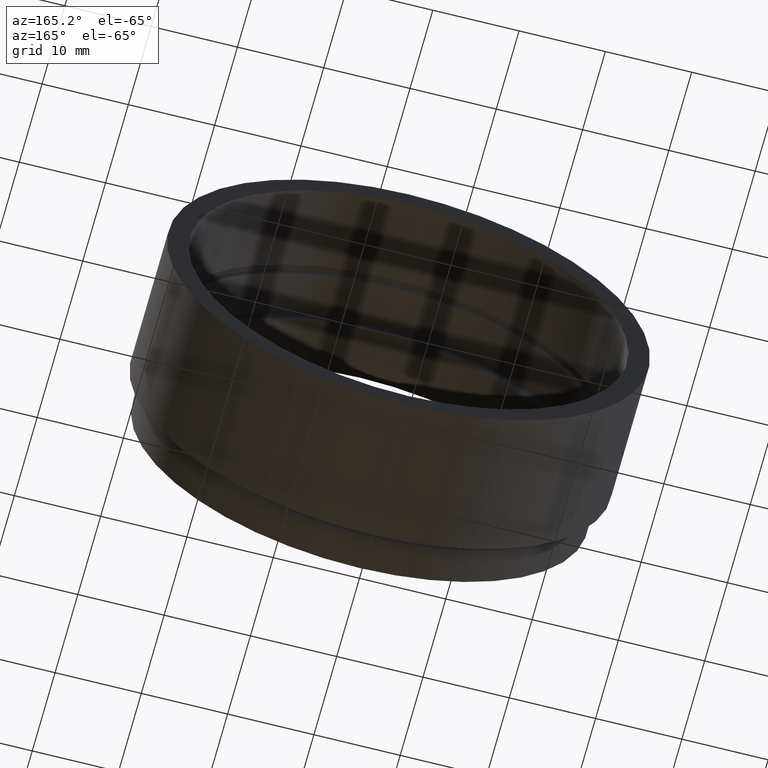
[diagram: clean part render]
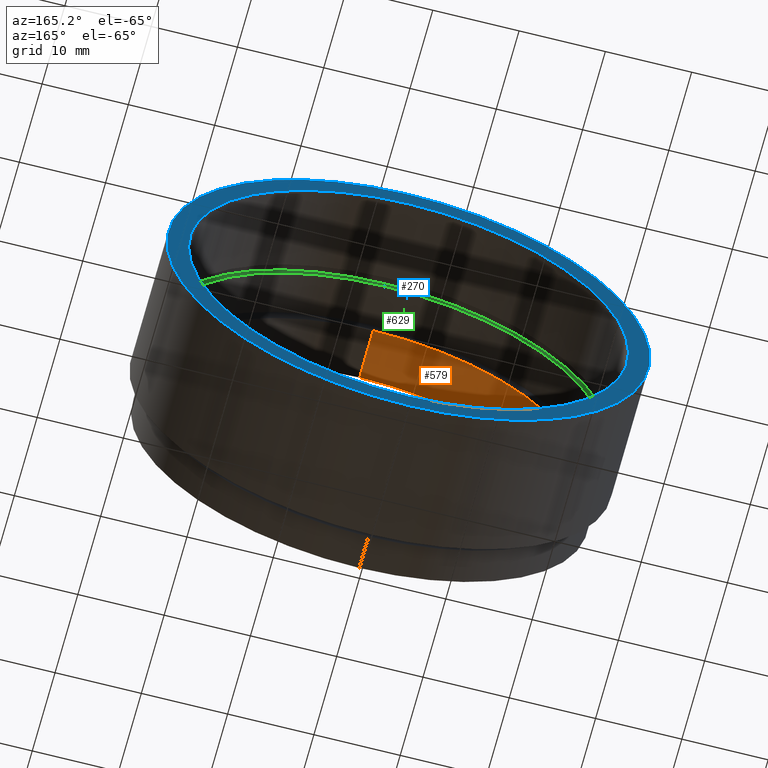
[diagram: same view with three faces highlighted in distinct colors, each labeled with its STEP entity id]
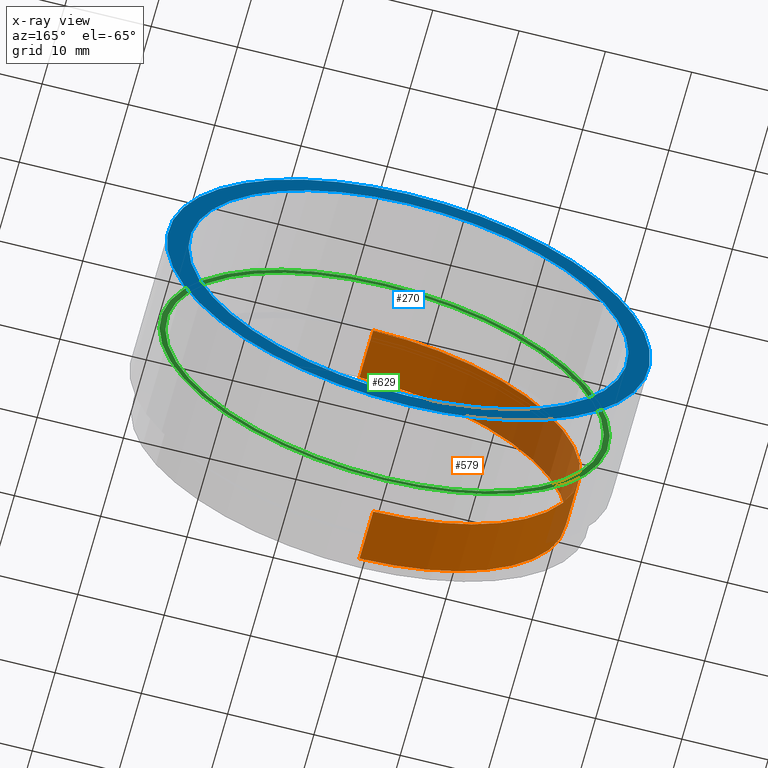
[diagram: x-ray of the same camera — body ghosted, the three highlighted faces saturated]
A machine part, auxiliary view with three faces highlighted in distinct colors.
The next image is the same camera in x-ray (body ghosted, the three faces saturated) — at least one of them is partly hidden behind the body in this view.
Their STEP definitions:

[orange] entity #579 — the highlighted cylindrical surface (partial cylindrical patch) has radius 24 mm, axis along (-0, -1, -0).
#15 = EDGE_LOOP ( 'NONE', ( #636, #658, #450, #231 ) ) ;
#33 = DIRECTION ( 'NONE',  ( -0.0000000000000000000, -1.000000000000000000, -0.0000000000000000000 ) ) ;
#63 = CARTESIAN_POINT ( 'NONE',  ( 0.0000000000000000000, 6.000000000000000000, -24.00000000000000000 ) ) ;
#71 = CARTESIAN_POINT ( 'NONE',  ( 0.0000000000000000000, 0.0000000000000000000, -24.00000000000000000 ) ) ;
#90 = EDGE_CURVE ( 'NONE', #442, #551, #101, .T. ) ;
#101 = CIRCLE ( 'NONE', #496, 24.00000000000000000 ) ;
#108 = DIRECTION ( 'NONE',  ( 0.0000000000000000000, 0.0000000000000000000, -1.000000000000000000 ) ) ;
#113 = VERTEX_POINT ( 'NONE', #563 ) ;
#149 = DIRECTION ( 'NONE',  ( -0.0000000000000000000, -1.000000000000000000, -0.0000000000000000000 ) ) ;
#161 = DIRECTION ( 'NONE',  ( 0.0000000000000000000, 0.0000000000000000000, -1.000000000000000000 ) ) ;
#194 = LINE ( 'NONE', #71, #297 ) ;
#212 = AXIS2_PLACEMENT_3D ( 'NONE', #623, #311, #161 ) ;
#225 = AXIS2_PLACEMENT_3D ( 'NONE', #345, #312, #108 ) ;
#228 = VECTOR ( 'NONE', #266, 1000.000000000000000 ) ;
#231 = ORIENTED_EDGE ( 'NONE', *, *, #247, .F. ) ;
#247 = EDGE_CURVE ( 'NONE', #551, #307, #194, .T. ) ;
#256 = CYLINDRICAL_SURFACE ( 'NONE', #225, 24.00000000000000000 ) ;
#261 = LINE ( 'NONE', #316, #228 ) ;
#266 = DIRECTION ( 'NONE',  ( -0.0000000000000000000, -1.000000000000000000, -0.0000000000000000000 ) ) ;
#291 = CIRCLE ( 'NONE', #212, 24.00000000000000000 ) ;
#295 = CARTESIAN_POINT ( 'NONE',  ( 0.0000000000000000000, 0.0000000000000000000, -24.00000000000000000 ) ) ;
#297 = VECTOR ( 'NONE', #149, 1000.000000000000000 ) ;
#307 = VERTEX_POINT ( 'NONE', #295 ) ;
#311 = DIRECTION ( 'NONE',  ( -0.0000000000000000000, -1.000000000000000000, -0.0000000000000000000 ) ) ;
#312 = DIRECTION ( 'NONE',  ( -0.0000000000000000000, -1.000000000000000000, -0.0000000000000000000 ) ) ;
#316 = CARTESIAN_POINT ( 'NONE',  ( 2.939152317953647900E-015, 0.0000000000000000000, 24.00000000000000000 ) ) ;
#331 = CARTESIAN_POINT ( 'NONE',  ( 2.939152317953647900E-015, 6.000000000000000000, 24.00000000000000000 ) ) ;
#345 = CARTESIAN_POINT ( 'NONE',  ( 0.0000000000000000000, 0.0000000000000000000, 0.0000000000000000000 ) ) ;
#383 = CARTESIAN_POINT ( 'NONE',  ( 0.0000000000000000000, 6.000000000000000000, 0.0000000000000000000 ) ) ;
#427 = DIRECTION ( 'NONE',  ( 0.0000000000000000000, 0.0000000000000000000, -1.000000000000000000 ) ) ;
#442 = VERTEX_POINT ( 'NONE', #331 ) ;
#450 = ORIENTED_EDGE ( 'NONE', *, *, #455, .T. ) ;
#455 = EDGE_CURVE ( 'NONE', #113, #307, #291, .T. ) ;
#496 = AXIS2_PLACEMENT_3D ( 'NONE', #383, #33, #427 ) ;
#551 = VERTEX_POINT ( 'NONE', #63 ) ;
#558 = FACE_OUTER_BOUND ( 'NONE', #15, .T. ) ;
#563 = CARTESIAN_POINT ( 'NONE',  ( 2.939152317953647900E-015, 0.0000000000000000000, 24.00000000000000000 ) ) ;
#579 = ADVANCED_FACE ( 'NONE', ( #558 ), #256, .F. ) ;
#589 = EDGE_CURVE ( 'NONE', #442, #113, #261, .T. ) ;
#623 = CARTESIAN_POINT ( 'NONE',  ( 0.0000000000000000000, 0.0000000000000000000, 0.0000000000000000000 ) ) ;
#636 = ORIENTED_EDGE ( 'NONE', *, *, #90, .F. ) ;
#658 = ORIENTED_EDGE ( 'NONE', *, *, #589, .T. ) ;

[blue] entity #270 — the highlighted planar face has unit normal (0, 1, 0).
#13 = ORIENTED_EDGE ( 'NONE', *, *, #160, .F. ) ;
#19 = CARTESIAN_POINT ( 'NONE',  ( 3.122849337825750200E-015, 21.50000000000000000, 25.50000000000000000 ) ) ;
#82 = CARTESIAN_POINT ( 'NONE',  ( 27.99999999999999600, 21.50000000000000000, 0.0000000000000000000 ) ) ;
#87 = VERTEX_POINT ( 'NONE', #92 ) ;
#92 = CARTESIAN_POINT ( 'NONE',  ( 0.0000000000000000000, 21.50000000000000000, -25.50000000000000000 ) ) ;
#100 = AXIS2_PLACEMENT_3D ( 'NONE', #244, #469, #188 ) ;
#129 = CIRCLE ( 'NONE', #276, 27.99999999999999600 ) ;
#145 = DIRECTION ( 'NONE',  ( 0.0000000000000000000, -0.0000000000000000000, 1.000000000000000000 ) ) ;
#157 = PLANE ( 'NONE',  #449 ) ;
#160 = EDGE_CURVE ( 'NONE', #498, #165, #505, .T. ) ;
#165 = VERTEX_POINT ( 'NONE', #464 ) ;
#174 = EDGE_LOOP ( 'NONE', ( #643, #13 ) ) ;
#177 = ORIENTED_EDGE ( 'NONE', *, *, #434, .T. ) ;
#188 = DIRECTION ( 'NONE',  ( 0.0000000000000000000, 0.0000000000000000000, -1.000000000000000000 ) ) ;
#198 = ORIENTED_EDGE ( 'NONE', *, *, #576, .T. ) ;
#207 = CIRCLE ( 'NONE', #662, 25.50000000000000000 ) ;
#244 = CARTESIAN_POINT ( 'NONE',  ( 0.0000000000000000000, 21.50000000000000000, 0.0000000000000000000 ) ) ;
#249 = DIRECTION ( 'NONE',  ( 0.0000000000000000000, 0.0000000000000000000, -1.000000000000000000 ) ) ;
#257 = EDGE_LOOP ( 'NONE', ( #198, #177 ) ) ;
#269 = EDGE_CURVE ( 'NONE', #165, #498, #129, .T. ) ;
#270 = ADVANCED_FACE ( 'NONE', ( #561, #437 ), #157, .T. ) ;
#276 = AXIS2_PLACEMENT_3D ( 'NONE', #454, #657, #249 ) ;
#299 = DIRECTION ( 'NONE',  ( 0.0000000000000000000, 0.0000000000000000000, -1.000000000000000000 ) ) ;
#347 = DIRECTION ( 'NONE',  ( -0.0000000000000000000, -1.000000000000000000, -0.0000000000000000000 ) ) ;
#382 = DIRECTION ( 'NONE',  ( -0.0000000000000000000, -1.000000000000000000, -0.0000000000000000000 ) ) ;
#386 = VERTEX_POINT ( 'NONE', #19 ) ;
#433 = CIRCLE ( 'NONE', #100, 25.50000000000000000 ) ;
#434 = EDGE_CURVE ( 'NONE', #386, #87, #433, .T. ) ;
#437 = FACE_OUTER_BOUND ( 'NONE', #174, .T. ) ;
#443 = DIRECTION ( 'NONE',  ( 0.0000000000000000000, 0.0000000000000000000, -1.000000000000000000 ) ) ;
#449 = AXIS2_PLACEMENT_3D ( 'NONE', #82, #456, #145 ) ;
#454 = CARTESIAN_POINT ( 'NONE',  ( 0.0000000000000000000, 21.50000000000000000, 0.0000000000000000000 ) ) ;
#456 = DIRECTION ( 'NONE',  ( 0.0000000000000000000, 1.000000000000000000, 0.0000000000000000000 ) ) ;
#464 = CARTESIAN_POINT ( 'NONE',  ( 0.0000000000000000000, 21.50000000000000000, -27.99999999999999600 ) ) ;
#469 = DIRECTION ( 'NONE',  ( -0.0000000000000000000, -1.000000000000000000, -0.0000000000000000000 ) ) ;
#490 = CARTESIAN_POINT ( 'NONE',  ( 3.429011037612588900E-015, 21.50000000000000000, 27.99999999999999600 ) ) ;
#498 = VERTEX_POINT ( 'NONE', #490 ) ;
#505 = CIRCLE ( 'NONE', #632, 27.99999999999999600 ) ;
#511 = CARTESIAN_POINT ( 'NONE',  ( 0.0000000000000000000, 21.50000000000000000, 0.0000000000000000000 ) ) ;
#546 = CARTESIAN_POINT ( 'NONE',  ( 0.0000000000000000000, 21.50000000000000000, 0.0000000000000000000 ) ) ;
#561 = FACE_BOUND ( 'NONE', #257, .T. ) ;
#576 = EDGE_CURVE ( 'NONE', #87, #386, #207, .T. ) ;
#632 = AXIS2_PLACEMENT_3D ( 'NONE', #546, #382, #443 ) ;
#643 = ORIENTED_EDGE ( 'NONE', *, *, #269, .F. ) ;
#657 = DIRECTION ( 'NONE',  ( -0.0000000000000000000, -1.000000000000000000, -0.0000000000000000000 ) ) ;
#662 = AXIS2_PLACEMENT_3D ( 'NONE', #511, #347, #299 ) ;

[green] entity #629 — the highlighted planar face has unit normal (0, 1, 0).
#23 = AXIS2_PLACEMENT_3D ( 'NONE', #304, #230, #471 ) ;
#30 = ORIENTED_EDGE ( 'NONE', *, *, #479, .T. ) ;
#66 = DIRECTION ( 'NONE',  ( -0.0000000000000000000, -1.000000000000000000, -0.0000000000000000000 ) ) ;
#79 = ORIENTED_EDGE ( 'NONE', *, *, #195, .F. ) ;
#132 = AXIS2_PLACEMENT_3D ( 'NONE', #258, #538, #555 ) ;
#133 = ORIENTED_EDGE ( 'NONE', *, *, #509, .T. ) ;
#153 = DIRECTION ( 'NONE',  ( 0.0000000000000000000, 0.0000000000000000000, -1.000000000000000000 ) ) ;
#168 = CARTESIAN_POINT ( 'NONE',  ( 3.196328145774592300E-015, 11.00000000000000200, 26.10000000000000100 ) ) ;
#173 = CARTESIAN_POINT ( 'NONE',  ( 3.110602869834277700E-015, 11.00000000000000200, 25.40000000000000600 ) ) ;
#180 = DIRECTION ( 'NONE',  ( -0.0000000000000000000, -1.000000000000000000, -0.0000000000000000000 ) ) ;
#195 = EDGE_CURVE ( 'NONE', #430, #240, #254, .T. ) ;
#197 = DIRECTION ( 'NONE',  ( 0.0000000000000000000, 1.000000000000000000, 0.0000000000000000000 ) ) ;
#217 = DIRECTION ( 'NONE',  ( 0.0000000000000000000, -0.0000000000000000000, 1.000000000000000000 ) ) ;
#230 = DIRECTION ( 'NONE',  ( -0.0000000000000000000, -1.000000000000000000, -0.0000000000000000000 ) ) ;
#240 = VERTEX_POINT ( 'NONE', #168 ) ;
#245 = CIRCLE ( 'NONE', #314, 25.40000000000000200 ) ;
#254 = CIRCLE ( 'NONE', #23, 26.10000000000000100 ) ;
#258 = CARTESIAN_POINT ( 'NONE',  ( 0.0000000000000000000, 11.00000000000000200, 0.0000000000000000000 ) ) ;
#272 = PLANE ( 'NONE',  #319 ) ;
#285 = AXIS2_PLACEMENT_3D ( 'NONE', #436, #66, #380 ) ;
#304 = CARTESIAN_POINT ( 'NONE',  ( 0.0000000000000000000, 11.00000000000000200, 0.0000000000000000000 ) ) ;
#314 = AXIS2_PLACEMENT_3D ( 'NONE', #448, #180, #153 ) ;
#319 = AXIS2_PLACEMENT_3D ( 'NONE', #508, #197, #217 ) ;
#340 = CIRCLE ( 'NONE', #285, 26.10000000000000100 ) ;
#349 = FACE_BOUND ( 'NONE', #525, .T. ) ;
#380 = DIRECTION ( 'NONE',  ( 0.0000000000000000000, 0.0000000000000000000, -1.000000000000000000 ) ) ;
#387 = CARTESIAN_POINT ( 'NONE',  ( 0.0000000000000000000, 11.00000000000000200, -26.10000000000000100 ) ) ;
#430 = VERTEX_POINT ( 'NONE', #387 ) ;
#432 = VERTEX_POINT ( 'NONE', #173 ) ;
#436 = CARTESIAN_POINT ( 'NONE',  ( 0.0000000000000000000, 11.00000000000000200, 0.0000000000000000000 ) ) ;
#448 = CARTESIAN_POINT ( 'NONE',  ( 0.0000000000000000000, 11.00000000000000200, 0.0000000000000000000 ) ) ;
#471 = DIRECTION ( 'NONE',  ( 0.0000000000000000000, 0.0000000000000000000, -1.000000000000000000 ) ) ;
#479 = EDGE_CURVE ( 'NONE', #533, #432, #666, .T. ) ;
#493 = ORIENTED_EDGE ( 'NONE', *, *, #669, .F. ) ;
#508 = CARTESIAN_POINT ( 'NONE',  ( 26.10000000000000100, 11.00000000000000200, 0.0000000000000000000 ) ) ;
#509 = EDGE_CURVE ( 'NONE', #432, #533, #245, .T. ) ;
#525 = EDGE_LOOP ( 'NONE', ( #30, #133 ) ) ;
#533 = VERTEX_POINT ( 'NONE', #668 ) ;
#538 = DIRECTION ( 'NONE',  ( -0.0000000000000000000, -1.000000000000000000, -0.0000000000000000000 ) ) ;
#555 = DIRECTION ( 'NONE',  ( 0.0000000000000000000, 0.0000000000000000000, -1.000000000000000000 ) ) ;
#586 = EDGE_LOOP ( 'NONE', ( #79, #493 ) ) ;
#616 = FACE_OUTER_BOUND ( 'NONE', #586, .T. ) ;
#629 = ADVANCED_FACE ( 'NONE', ( #349, #616 ), #272, .T. ) ;
#666 = CIRCLE ( 'NONE', #132, 25.40000000000000200 ) ;
#668 = CARTESIAN_POINT ( 'NONE',  ( 0.0000000000000000000, 11.00000000000000200, -25.40000000000000200 ) ) ;
#669 = EDGE_CURVE ( 'NONE', #240, #430, #340, .T. ) ;